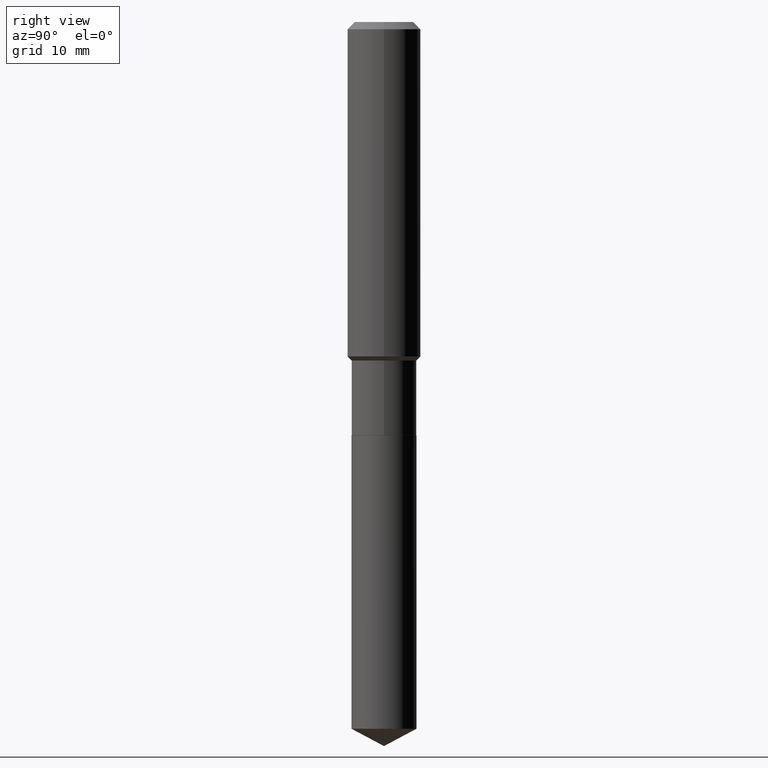
[diagram: clean part render]
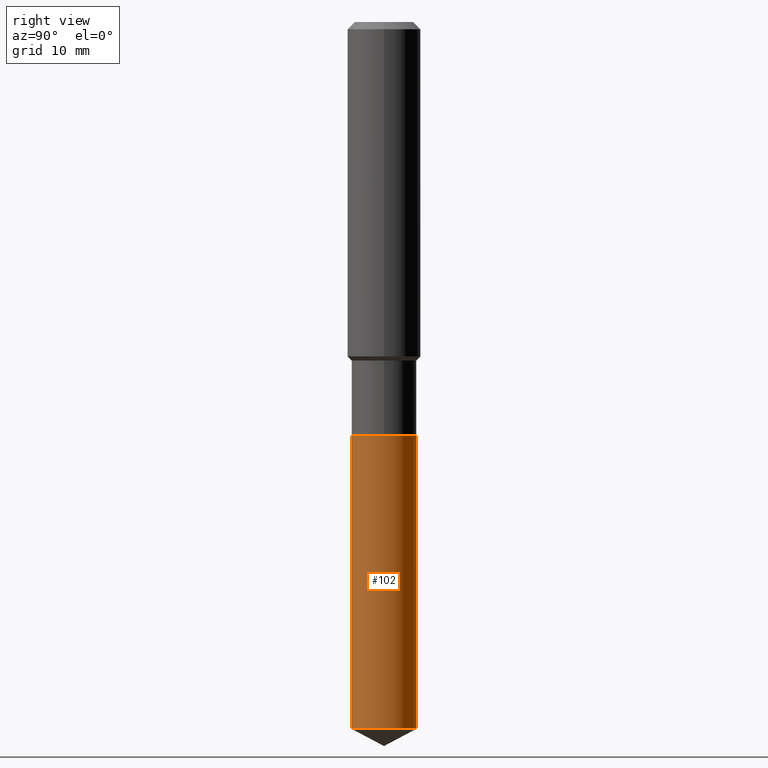
[diagram: same view with one face highlighted and labeled with its STEP entity id]
A machine part, right view. The second image highlights one B-rep face of the part: STEP entity #102.
In plain terms, the highlighted cylindrical surface (edge-blend (fillet) strip) has radius 3.5497 mm, axis along (-0, 0, 1).
Its self-contained STEP definition (entity closure, byte-faithful):
#9 = VERTEX_POINT ( 'NONE', #49 ) ;
#13 = LINE ( 'NONE', #167, #375 ) ;
#26 = DIRECTION ( 'NONE',  ( -2.445340770409964636E-29, 3.491664693360535590E-15, 1.000000000000000000 ) ) ;
#45 = DIRECTION ( 'NONE',  ( -6.982962677686265133E-15, -1.000000000000000000, 3.909621457837943227E-15 ) ) ;
#49 = CARTESIAN_POINT ( 'NONE',  ( -9.758690342066122119E-16, -0.1397500000000062026, -1.775499999999999412 ) ) ;
#54 = AXIS2_PLACEMENT_3D ( 'NONE', #378, #377, #300 ) ;
#67 = FACE_OUTER_BOUND ( 'NONE', #246, .T. ) ;
#72 = VERTEX_POINT ( 'NONE', #245 ) ;
#79 = CARTESIAN_POINT ( 'NONE',  ( 9.929834732248144530E-16, 0.1397499999999938236, -1.775500000000000522 ) ) ;
#82 = CARTESIAN_POINT ( 'NONE',  ( 4.341929865381710149E-29, -6.199125117116004508E-15, -1.775499999999999856 ) ) ;
#88 = VECTOR ( 'NONE', #274, 39.37007874015748143 ) ;
#90 = DIRECTION ( 'NONE',  ( -2.445340770409964636E-29, 3.491664693360535195E-15, 1.000000000000000000 ) ) ;
#102 = ADVANCED_FACE ( 'NONE', ( #67 ), #219, .T. ) ;
#106 = CIRCLE ( 'NONE', #384, 0.1397500000000000131 ) ;
#118 = EDGE_CURVE ( 'NONE', #9, #214, #106, .T. ) ;
#124 = CARTESIAN_POINT ( 'NONE',  ( 9.929834732248142558E-16, 0.1397499999999894382, -3.035893606925309296 ) ) ;
#135 = ORIENTED_EDGE ( 'NONE', *, *, #270, .T. ) ;
#136 = DIRECTION ( 'NONE',  ( -6.982962677686265133E-15, -1.000000000000000000, 3.909621457837943227E-15 ) ) ;
#167 = CARTESIAN_POINT ( 'NONE',  ( -9.758690342066122119E-16, -0.1397500000000062026, -1.775499999999999412 ) ) ;
#185 = ORIENTED_EDGE ( 'NONE', *, *, #118, .F. ) ;
#204 = LINE ( 'NONE', #459, #88 ) ;
#214 = VERTEX_POINT ( 'NONE', #79 ) ;
#219 = CYLINDRICAL_SURFACE ( 'NONE', #236, 0.1397500000000000131 ) ;
#233 = DIRECTION ( 'NONE',  ( -2.445340770409964636E-29, 3.491664693360535590E-15, 1.000000000000000000 ) ) ;
#236 = AXIS2_PLACEMENT_3D ( 'NONE', #365, #26, #136 ) ;
#245 = CARTESIAN_POINT ( 'NONE',  ( -9.758690342065818408E-16, -0.1397500000000106157, -3.035893606925307964 ) ) ;
#246 = EDGE_LOOP ( 'NONE', ( #135, #437, #185, #482 ) ) ;
#270 = EDGE_CURVE ( 'NONE', #72, #403, #451, .T. ) ;
#274 = DIRECTION ( 'NONE',  ( -2.445340770409964636E-29, 3.491664693360535195E-15, 1.000000000000000000 ) ) ;
#300 = DIRECTION ( 'NONE',  ( -6.982962677686265133E-15, -1.000000000000000000, 3.909621457837943227E-15 ) ) ;
#365 = CARTESIAN_POINT ( 'NONE',  ( 4.341929865381710149E-29, -6.199125117116004508E-15, -1.775499999999999856 ) ) ;
#373 = EDGE_CURVE ( 'NONE', #403, #214, #204, .T. ) ;
#375 = VECTOR ( 'NONE', #90, 39.37007874015748143 ) ;
#377 = DIRECTION ( 'NONE',  ( -2.445340770409964636E-29, 3.491664693360535590E-15, 1.000000000000000000 ) ) ;
#378 = CARTESIAN_POINT ( 'NONE',  ( 7.424021739160239396E-29, -1.059999697415444211E-14, -3.035893606925308408 ) ) ;
#384 = AXIS2_PLACEMENT_3D ( 'NONE', #82, #233, #45 ) ;
#403 = VERTEX_POINT ( 'NONE', #124 ) ;
#437 = ORIENTED_EDGE ( 'NONE', *, *, #373, .T. ) ;
#451 = CIRCLE ( 'NONE', #54, 0.1397500000000000131 ) ;
#459 = CARTESIAN_POINT ( 'NONE',  ( 9.929834732247832930E-16, 0.1397499999999938236, -1.775500000000000522 ) ) ;
#464 = EDGE_CURVE ( 'NONE', #72, #9, #13, .T. ) ;
#482 = ORIENTED_EDGE ( 'NONE', *, *, #464, .F. ) ;